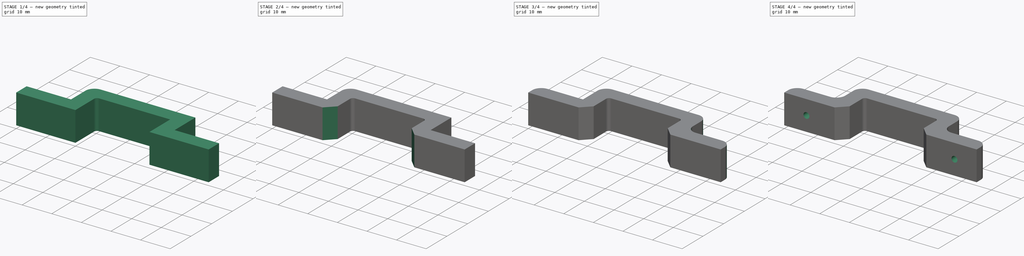
[diagram: build sequence overview — one tinted view per stage of 4, left to right]
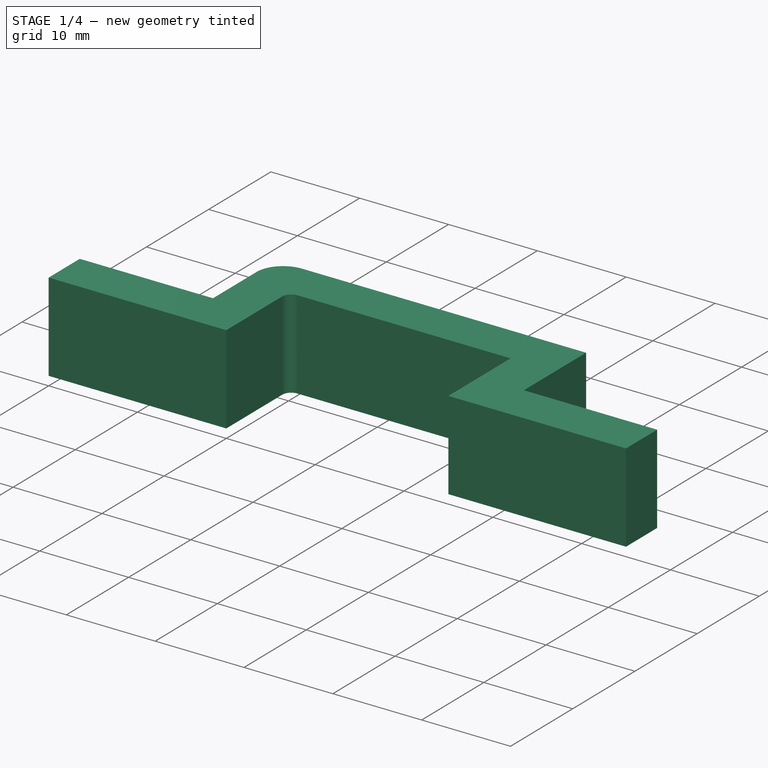
[diagram: stage 1 of 4 — iso view after this stage's code; geometry added in this stage tinted green]
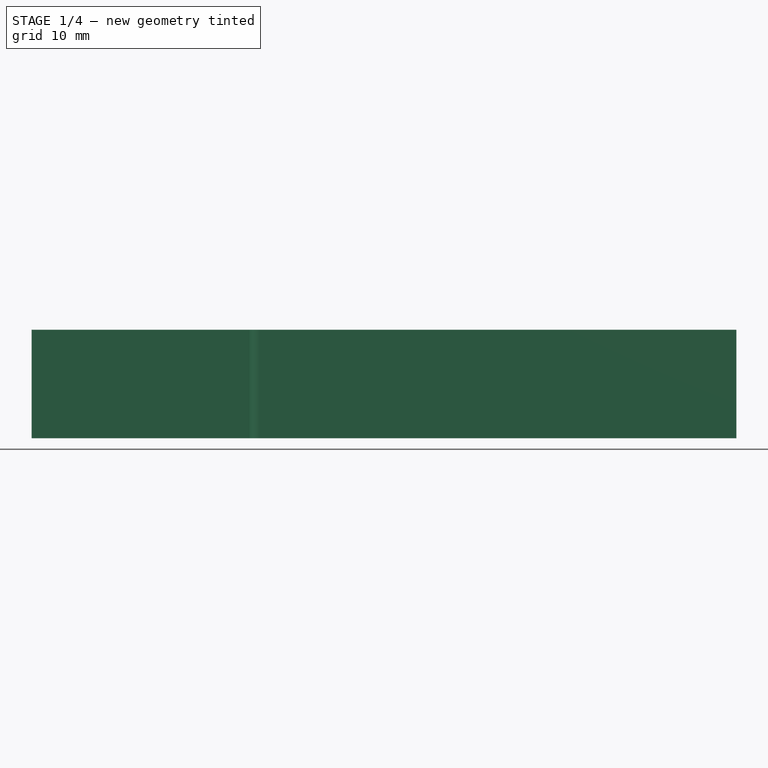
[diagram: stage 1 of 4 — front view after this stage's code; geometry added in this stage tinted green]
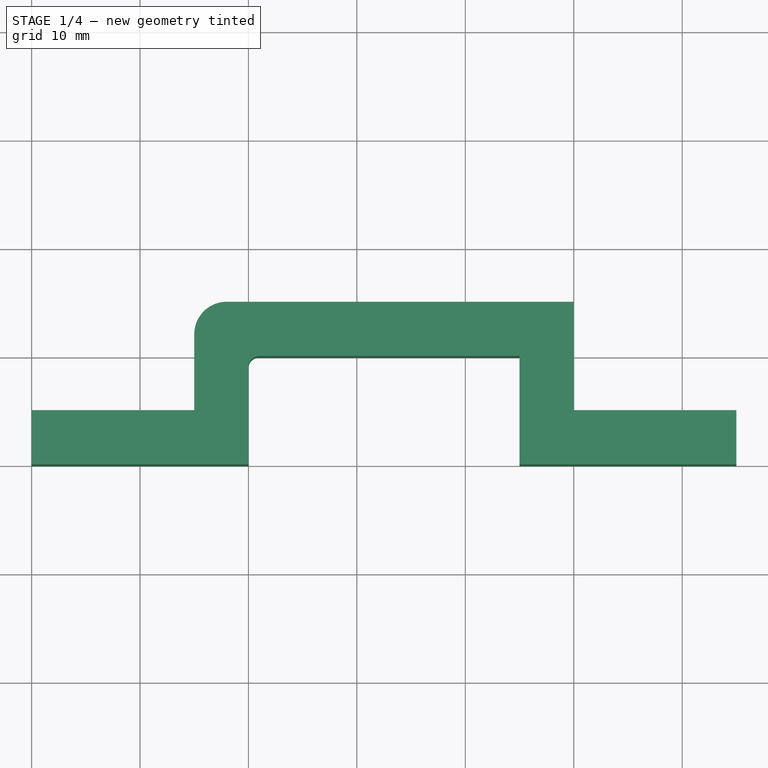
[diagram: stage 1 of 4 — top view after this stage's code; geometry added in this stage tinted green]
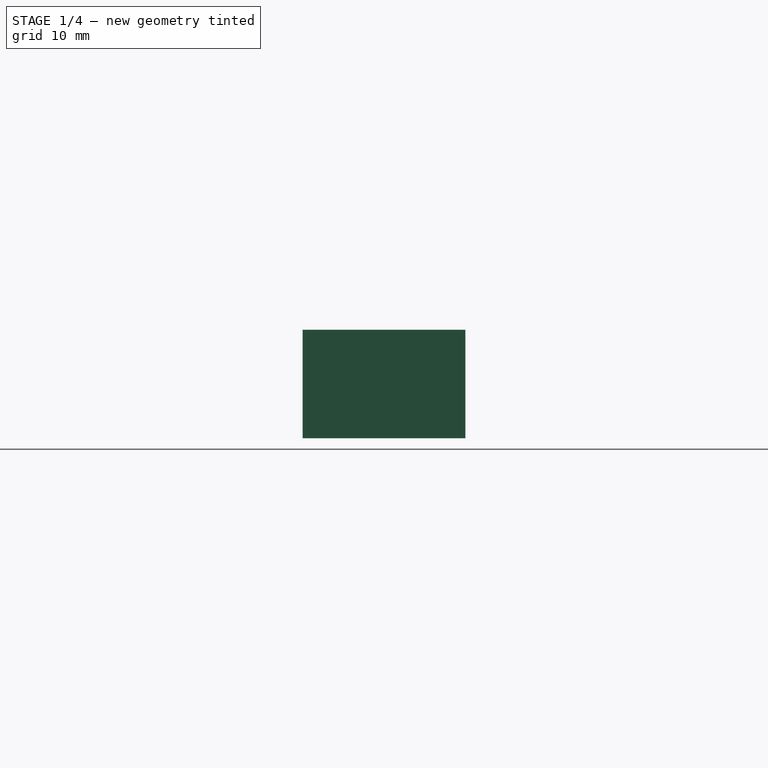
[diagram: stage 1 of 4 — right view after this stage's code; geometry added in this stage tinted green]
FCSTD DOCUMENT  (FreeCAD 0.14R3637 (Git))
Label: kabelclip
License: CC-BY 3.0
LicenseURL: http://creativecommons.org/licenses/by/3.0/
objects: PartDesign::Fillet×8, Sketcher::SketchObject×3, PartDesign::Chamfer×2, PartDesign::Pocket×2, PartDesign::Pad×1
note: 19 computed .brp shape members not serialized (recipe doc carries the construction recipe); baked Part::Feature solids carry a one-line shape summary decoded from their .brp

FEATURE [Sketcher::SketchObject] Sketch
  sketch-geometry (16):
    g0: LineSegment [constr] StartX=0 StartY=0 StartZ=0 EndX=25 EndY=0 EndZ=0
    g1: LineSegment [constr] StartX=25 StartY=0 StartZ=0 EndX=25 EndY=10 EndZ=0
    g2: LineSegment [constr] StartX=25 StartY=10 StartZ=0 EndX=0 EndY=10 EndZ=0
    g3: LineSegment [constr] StartX=0 StartY=10 StartZ=0 EndX=0 EndY=0 EndZ=0
    g4: LineSegment StartX=0 StartY=0 StartZ=0 EndX=-20 EndY=0 EndZ=0
    g5: LineSegment StartX=-20 StartY=0 StartZ=0 EndX=-20 EndY=5 EndZ=0
    g6: LineSegment StartX=-20 StartY=5 StartZ=0 EndX=-5 EndY=5 EndZ=0
    g7: LineSegment StartX=-5 StartY=5 StartZ=0 EndX=-5 EndY=15 EndZ=0
    g8: LineSegment StartX=-5 StartY=15 StartZ=0 EndX=30 EndY=15 EndZ=0
    g9: LineSegment StartX=30 StartY=15 StartZ=0 EndX=30 EndY=5 EndZ=0
    g10: LineSegment StartX=30 StartY=5 StartZ=0 EndX=45 EndY=5 EndZ=0
    g11: LineSegment StartX=45 StartY=5 StartZ=0 EndX=45 EndY=0 EndZ=0
    g12: LineSegment StartX=45 StartY=0 StartZ=0 EndX=25 EndY=0 EndZ=0
    g13: LineSegment StartX=25 StartY=0 StartZ=0 EndX=25 EndY=10 EndZ=0
    g14: LineSegment StartX=25 StartY=10 StartZ=0 EndX=0 EndY=10 EndZ=0
    g15: LineSegment StartX=0 StartY=10 StartZ=0 EndX=0 EndY=0 EndZ=0
  constraints (48):
    c: Coincident(g0,g1)
    c: Coincident(g1,g2)
    c: Coincident(g2,g3)
    c: Coincident(g3,g0)
    c: Horizontal(g0)
    c: Horizontal(g2)
    c: Vertical(g1)
    c: Vertical(g3)
    c: Coincident(g0,g-1)
    c: DistanceX(g0) = 25
    c: DistanceY(g1) = 10
    c: Coincident(g4,g5)
    c: Coincident(g5,g6)
    c: Coincident(g6,g7)
    c: Coincident(g7,g8)
    c: Coincident(g8,g9)
    c: Coincident(g9,g10)
    c: Coincident(g10,g11)
    c: Coincident(g11,g12)
    c: Coincident(g12,g13)
    c: Coincident(g13,g14)
    c: Coincident(g14,g15)
    c: Coincident(g4,g15)
    c: Perpendicular(g15,g4)
    c: Perpendicular(g5,g4)
    c: Perpendicular(g5,g6)
    c: Perpendicular(g6,g7)
    c: Perpendicular(g14,g15)
    c: Perpendicular(g7,g8)
    c: Perpendicular(g14,g13)
    c: Perpendicular(g9,g8)
    c: Perpendicular(g10,g9)
    c: Perpendicular(g11,g10)
    c: Perpendicular(g12,g11)
    c: Perpendicular(g13,g12)
    c: Perpendicular(g14,g13)
    c: Perpendicular(g15,g14)
    c: Coincident(g13,g1)
    c: Coincident(g14,g2)
    c: Coincident(g4,g-1)
    c: Coincident(g12,g0)
    c: DistanceX(g12) = -20
    c: DistanceX(g4) = -20
    c: DistanceX(g10) = 15
    c: DistanceX(g6) = 15
    c: DistanceY(g9) = -10
    c: DistanceY(g11) = -5
    c: DistanceY(g7) = 10
FEATURE [PartDesign::Pad] Pad
  Length = 10
  Length2 = 100
  Sketch = -> Sketch
  Type = 0
FEATURE [PartDesign::Fillet] Fillet
  Base = -> Pad [Edge11]
  Radius = 3
FEATURE [PartDesign::Fillet] Fillet001
  Base = -> Fillet [Edge36]
  Radius = 1
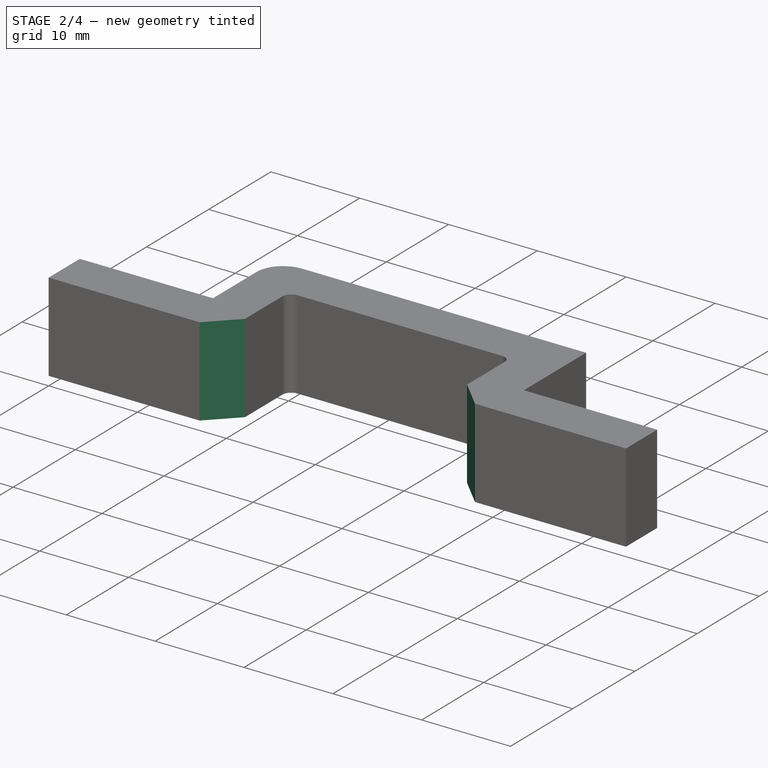
[diagram: stage 2 of 4 — iso view after this stage's code; geometry added in this stage tinted green]
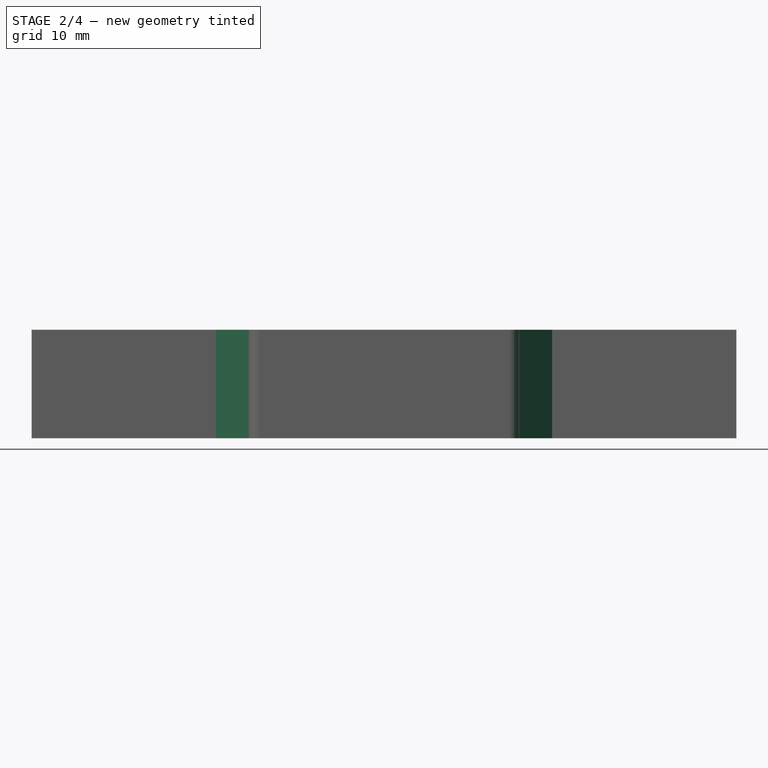
[diagram: stage 2 of 4 — front view after this stage's code; geometry added in this stage tinted green]
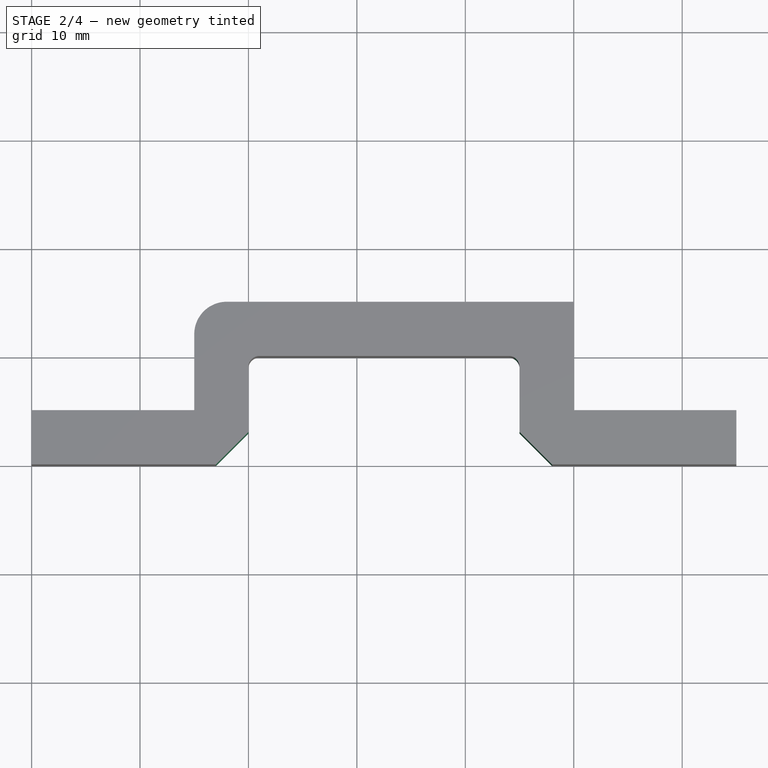
[diagram: stage 2 of 4 — top view after this stage's code; geometry added in this stage tinted green]
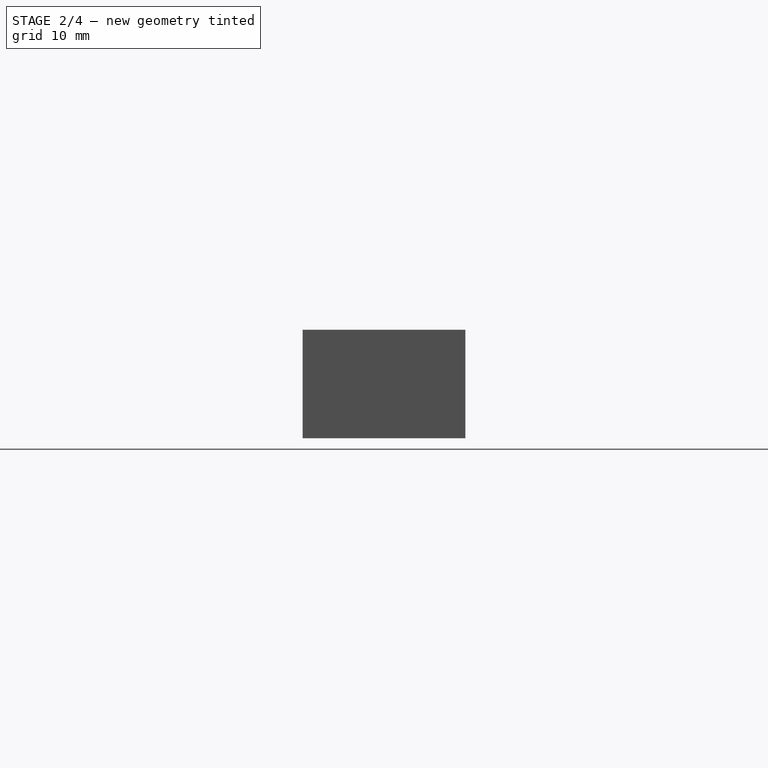
[diagram: stage 2 of 4 — right view after this stage's code; geometry added in this stage tinted green]
FEATURE [PartDesign::Fillet] Fillet002
  Base = -> Fillet001 [Edge22]
  Radius = 1
FEATURE [PartDesign::Chamfer] Chamfer
  Base = -> Fillet002 [Edge23]
  Size = 3
FEATURE [PartDesign::Chamfer] Chamfer001
  Base = -> Chamfer [Edge34]
  Size = 3
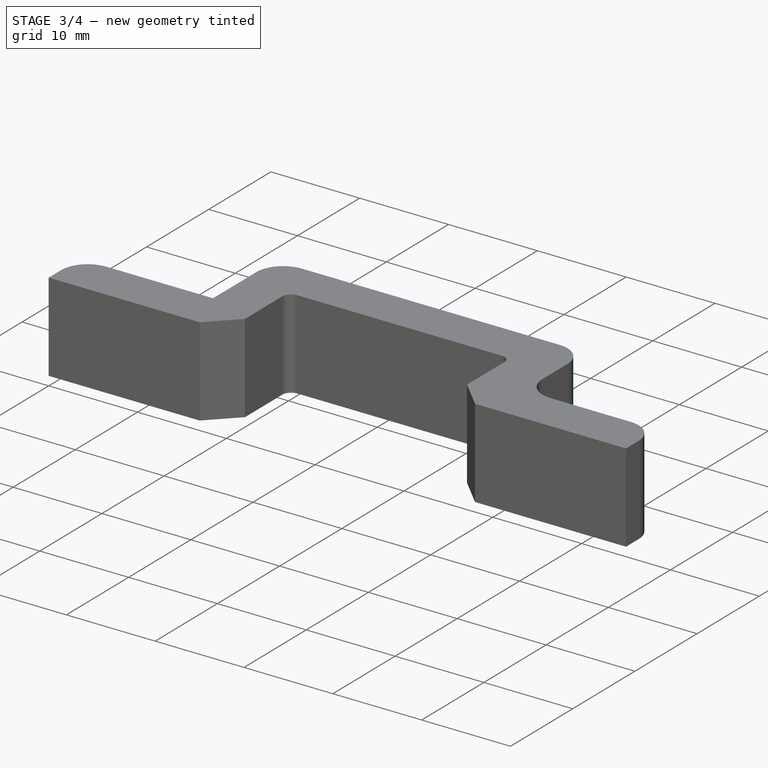
[diagram: stage 3 of 4 — iso view after this stage's code; geometry added in this stage tinted green]
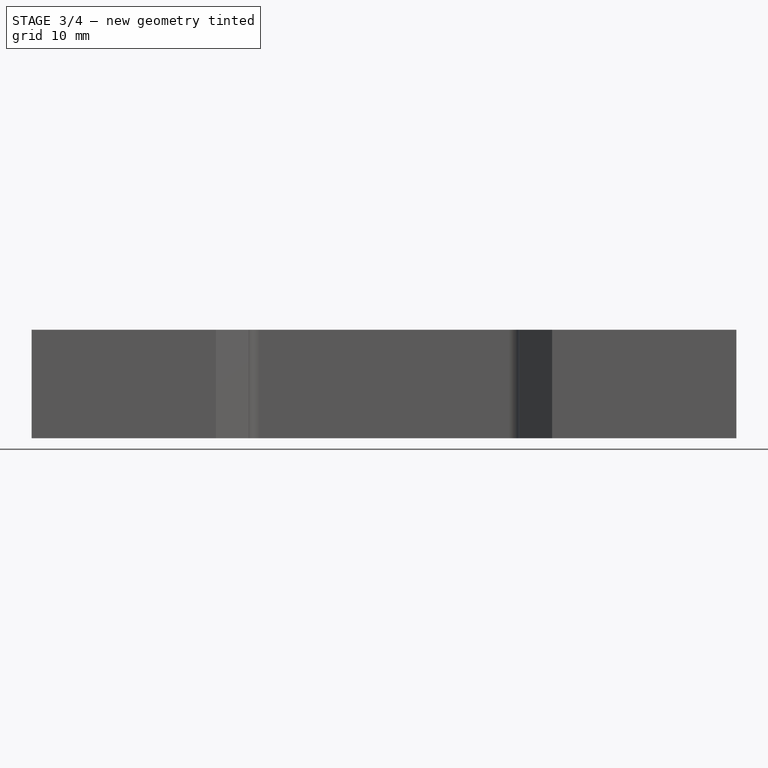
[diagram: stage 3 of 4 — front view after this stage's code; geometry added in this stage tinted green]
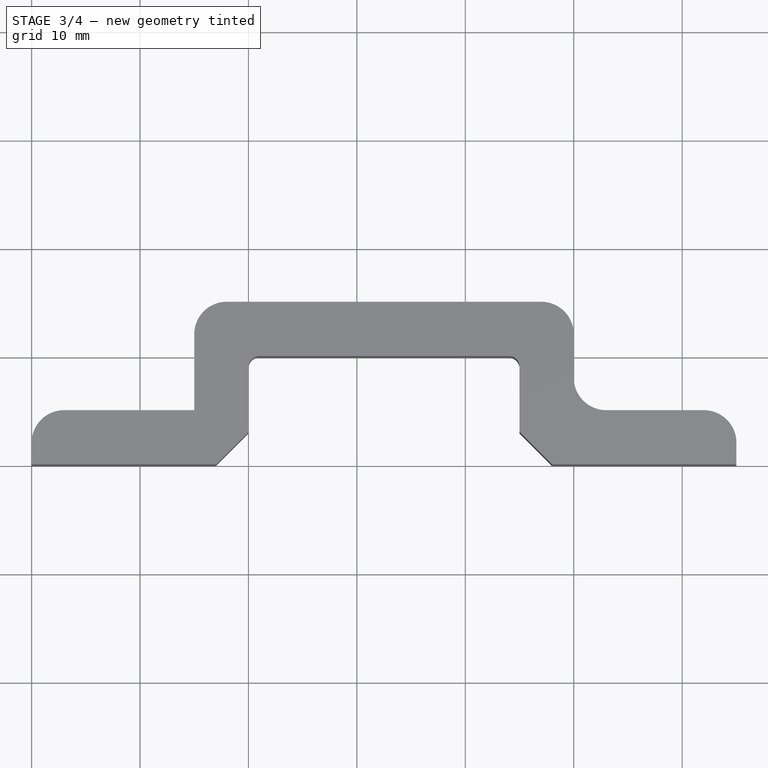
[diagram: stage 3 of 4 — top view after this stage's code; geometry added in this stage tinted green]
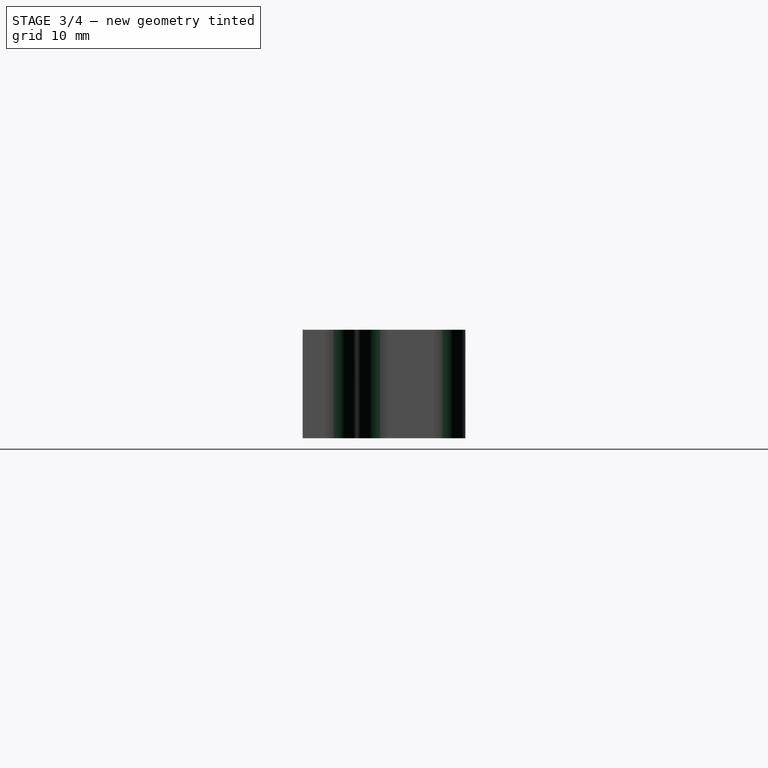
[diagram: stage 3 of 4 — right view after this stage's code; geometry added in this stage tinted green]
FEATURE [PartDesign::Fillet] Fillet003
  Base = -> Chamfer001 [Edge45]
  Radius = 3
FEATURE [PartDesign::Fillet] Fillet004
  Base = -> Fillet003 [Edge30]
  Radius = 3
FEATURE [PartDesign::Fillet] Fillet005
  Base = -> Fillet004 [Edge45]
  Radius = 3
FEATURE [PartDesign::Fillet] Fillet006
  Base = -> Fillet005 [Edge42]
  Radius = 3
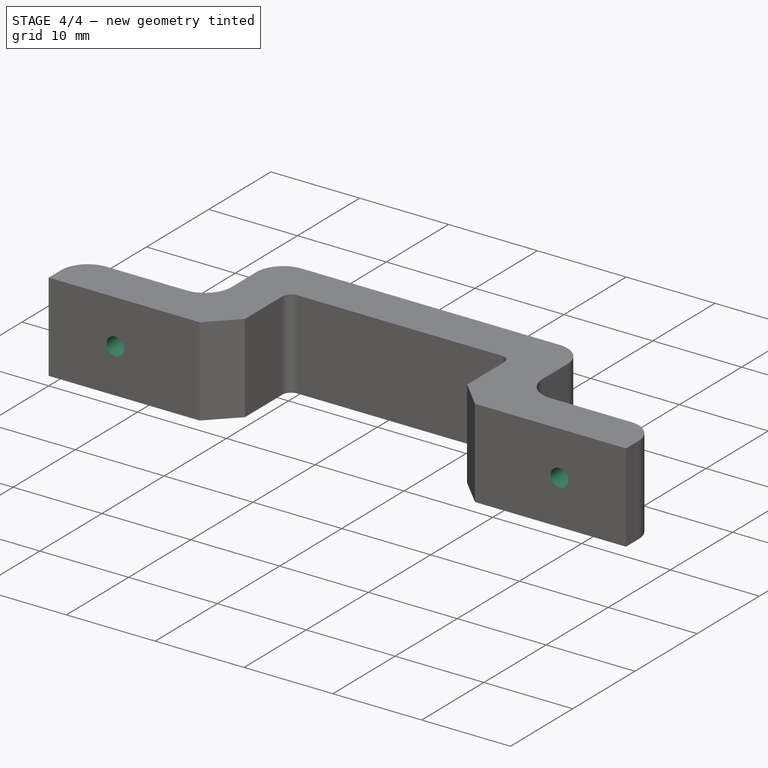
[diagram: stage 4 of 4 — iso view after this stage's code; geometry added in this stage tinted green]
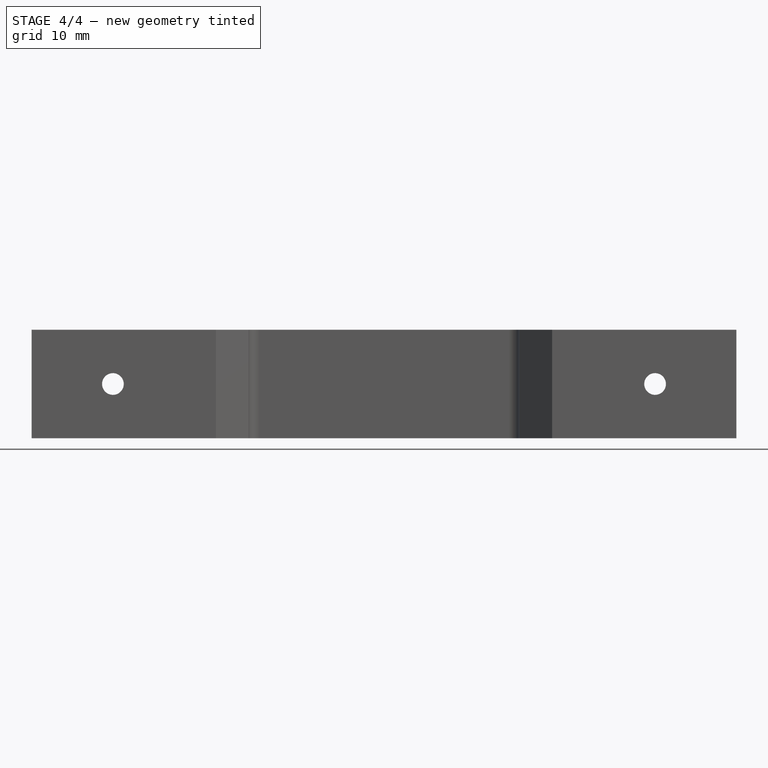
[diagram: stage 4 of 4 — front view after this stage's code; geometry added in this stage tinted green]
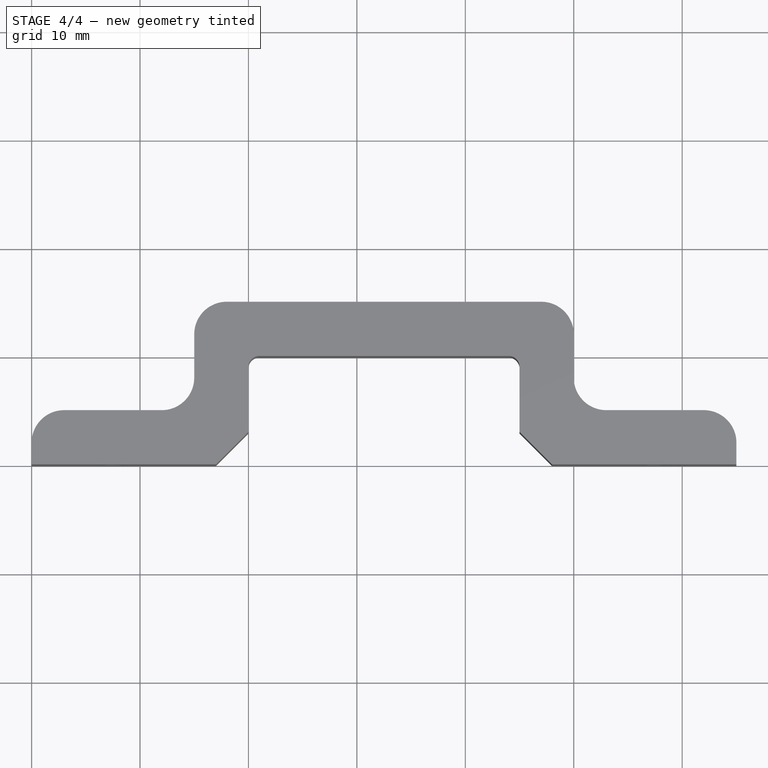
[diagram: stage 4 of 4 — top view after this stage's code; geometry added in this stage tinted green]
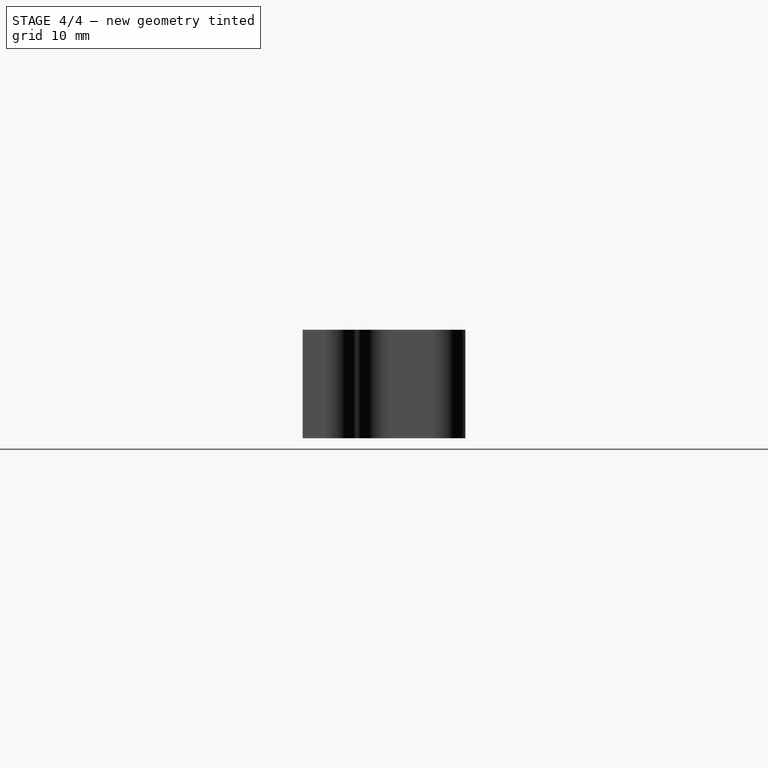
[diagram: stage 4 of 4 — right view after this stage's code; geometry added in this stage tinted green]
FEATURE [PartDesign::Fillet] Fillet007
  Base = -> Fillet006 [Edge39]
  Radius = 3
FEATURE [Sketcher::SketchObject] Sketch001
  ExternalGeometry = -> [Fillet007]
  Placement = pos=(0,5,0) rot=(0,0.707107,0.707107;3.14159rad)
  Support = -> Fillet007 [Face14]
  sketch-geometry (4):
    g0: LineSegment [constr] StartX=-42 StartY=10 StartZ=0 EndX=-33 EndY=0 EndZ=0
    g1: LineSegment [constr] StartX=-33 StartY=10 StartZ=0 EndX=-42 EndY=0 EndZ=0
    g2: GeomPoint [constr] X=-37.5 Y=5 Z=0
    g3: Circle CenterX=-37.5 CenterY=5 CenterZ=0 NormalX=0 NormalY=0 NormalZ=1 Radius=1
  constraints (8):
    c: Coincident(g0,g-3)
    c: Coincident(g0,g-6)
    c: Coincident(g1,g-5)
    c: Coincident(g1,g-4)
    c: PointOnObject(g2,g0)
    c: PointOnObject(g2,g1)
    c: Coincident(g3,g2)
    c: Radius(g3) = 1
FEATURE [PartDesign::Pocket] Pocket
  Length = 5
  Sketch = -> Sketch001
  Type = 0
FEATURE [Sketcher::SketchObject] Sketch002
  ExternalGeometry = -> [Pocket]
  Placement = pos=(0,5,0) rot=(0,0.707107,0.707107;3.14159rad)
  Support = -> Pocket [Face5]
  sketch-geometry (4):
    g0: LineSegment [constr] StartX=17 StartY=10 StartZ=0 EndX=8 EndY=0 EndZ=0
    g1: LineSegment [constr] StartX=8 StartY=10 StartZ=0 EndX=17 EndY=0 EndZ=0
    g2: GeomPoint [constr] X=12.5 Y=5 Z=0
    g3: Circle CenterX=12.5 CenterY=5 CenterZ=0 NormalX=0 NormalY=0 NormalZ=1 Radius=1
  constraints (8):
    c: Coincident(g0,g-4)
    c: Coincident(g0,g-5)
    c: Coincident(g1,g-3)
    c: Coincident(g1,g-6)
    c: PointOnObject(g2,g1)
    c: PointOnObject(g2,g0)
    c: Coincident(g3,g2)
    c: Radius(g3) = 1
FEATURE [PartDesign::Pocket] Pocket001
  Length = 5
  Sketch = -> Sketch002
  Type = 0
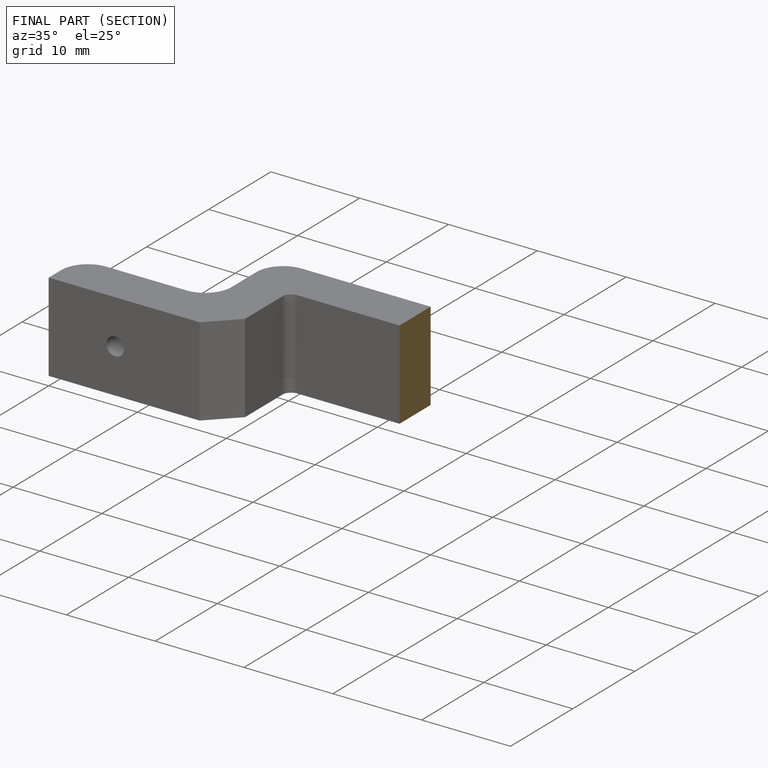
[diagram: finished part — half-section view (interior)]
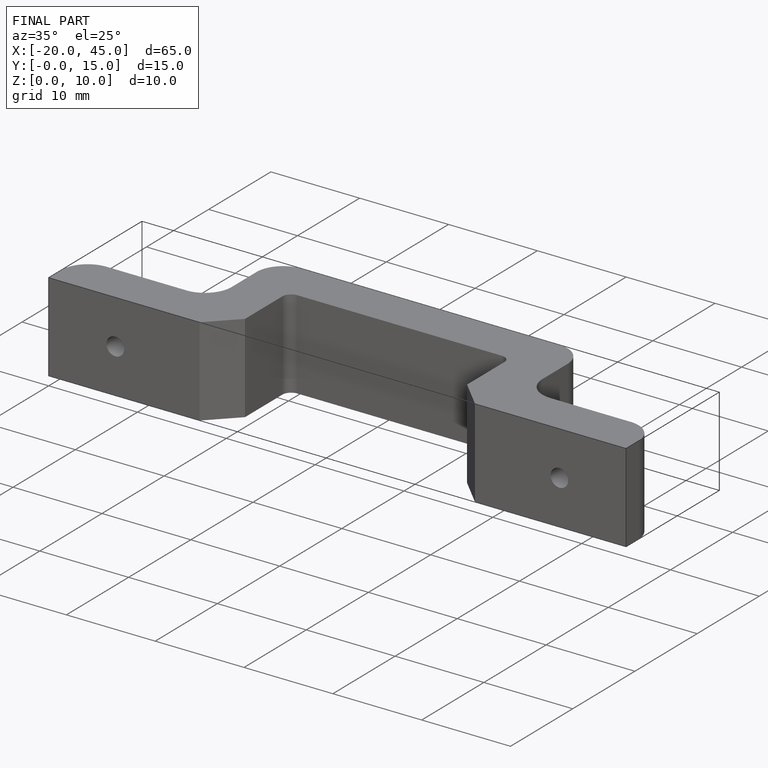
[diagram: finished part — iso view with bounding-box wireframe]
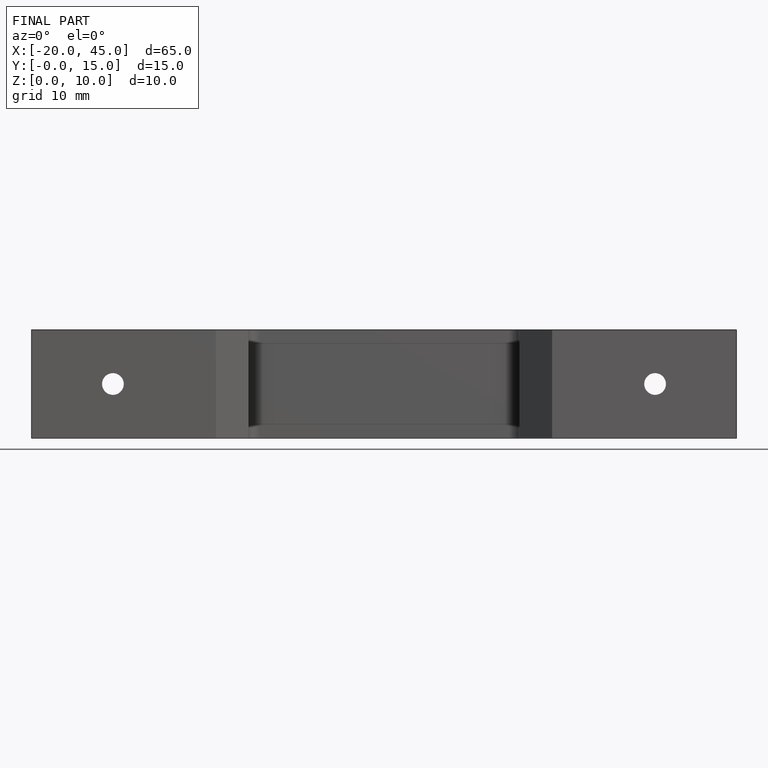
[diagram: finished part — front view with bounding-box wireframe]
